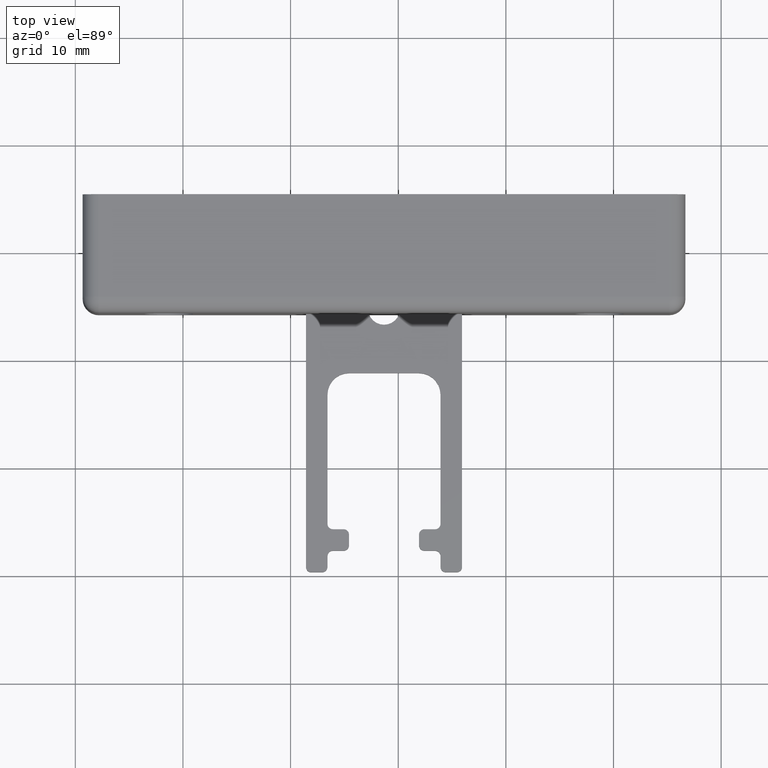
[diagram: clean part render]
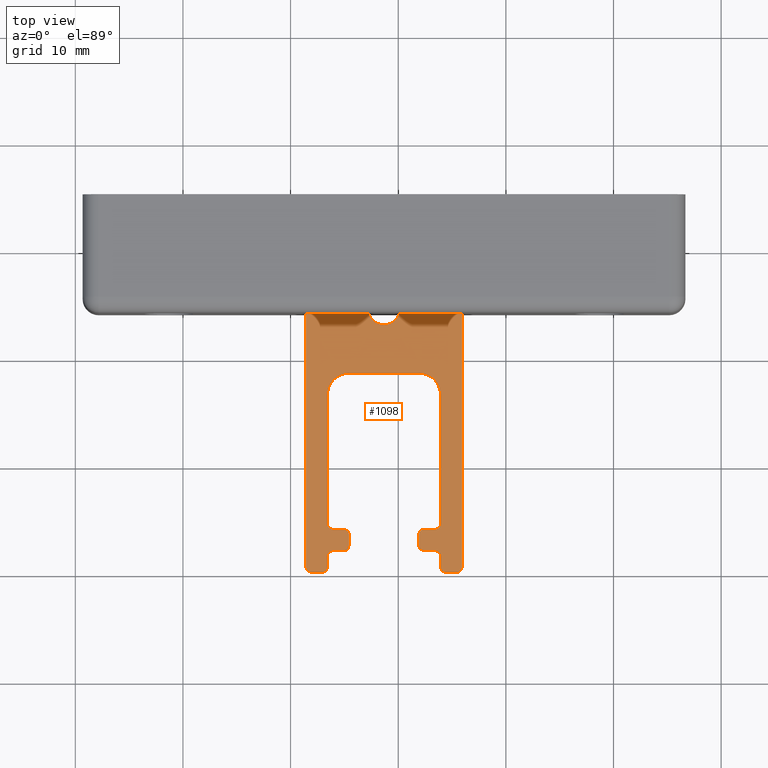
[diagram: same view with one face highlighted and labeled with its STEP entity id]
A machine part, top view. The second image highlights one B-rep face of the part: STEP entity #1098.
In plain terms, the highlighted planar face has unit normal (0, 0, 1).
Its self-contained STEP definition (entity closure, byte-faithful):
#57=PLANE('',#1216);
#104=LINE('',#1724,#206);
#108=LINE('',#1736,#210);
#112=LINE('',#1748,#214);
#116=LINE('',#1760,#218);
#120=LINE('',#1772,#222);
#126=LINE('',#1793,#228);
#130=LINE('',#1805,#232);
#134=LINE('',#1817,#236);
#138=LINE('',#1829,#240);
#142=LINE('',#1841,#244);
#146=LINE('',#1852,#248);
#148=LINE('',#1856,#250);
#151=LINE('',#1862,#253);
#158=LINE('',#1872,#260);
#159=LINE('',#1874,#261);
#160=LINE('',#1876,#262);
#161=LINE('',#1877,#263);
#206=VECTOR('',#1396,12.);
#210=VECTOR('',#1408,1.00000000000001);
#214=VECTOR('',#1420,0.999999999999996);
#218=VECTOR('',#1432,1.00000000000001);
#222=VECTOR('',#1444,1.00000000000002);
#228=VECTOR('',#1464,1.00000000000002);
#232=VECTOR('',#1476,0.999999999999543);
#236=VECTOR('',#1488,0.999999999999996);
#240=VECTOR('',#1500,0.999999999999091);
#244=VECTOR('',#1512,12.);
#248=VECTOR('',#1524,6.50000000000001);
#250=VECTOR('',#1528,5.83578643762693);
#253=VECTOR('',#1533,23.5);
#260=VECTOR('',#1544,1.);
#261=VECTOR('',#1547,23.5);
#262=VECTOR('',#1550,5.8357864376269);
#263=VECTOR('',#1551,1.);
#348=FACE_OUTER_BOUND('',#412,.T.);
#412=EDGE_LOOP('',(#997,#998,#999,#1000,#1001,#1002,#1003,#1004,#1005,#1006,
#1007,#1008,#1009,#1010,#1011,#1012,#1013,#1014,#1015,#1016,#1017,#1018,
#1019,#1020,#1021,#1022,#1023,#1024,#1025,#1026,#1027,#1028));
#439=CIRCLE('',#1156,1.5);
#441=CIRCLE('',#1159,0.5);
#443=CIRCLE('',#1162,0.5);
#445=CIRCLE('',#1165,2.);
#447=CIRCLE('',#1169,0.5);
#449=CIRCLE('',#1173,0.5);
#451=CIRCLE('',#1177,0.5);
#453=CIRCLE('',#1181,0.5);
#455=CIRCLE('',#1185,0.5);
#457=CIRCLE('',#1188,0.5);
#459=CIRCLE('',#1192,0.5);
#461=CIRCLE('',#1196,0.5);
#463=CIRCLE('',#1200,0.5);
#465=CIRCLE('',#1204,0.5);
#467=CIRCLE('',#1208,2.);
#505=VERTEX_POINT('',#1687);
#506=VERTEX_POINT('',#1688);
#509=VERTEX_POINT('',#1696);
#510=VERTEX_POINT('',#1697);
#513=VERTEX_POINT('',#1705);
#514=VERTEX_POINT('',#1706);
#517=VERTEX_POINT('',#1714);
#518=VERTEX_POINT('',#1715);
#521=VERTEX_POINT('',#1723);
#523=VERTEX_POINT('',#1729);
#525=VERTEX_POINT('',#1735);
#527=VERTEX_POINT('',#1741);
#529=VERTEX_POINT('',#1747);
#531=VERTEX_POINT('',#1753);
#533=VERTEX_POINT('',#1759);
#535=VERTEX_POINT('',#1765);
#537=VERTEX_POINT('',#1771);
#539=VERTEX_POINT('',#1777);
#541=VERTEX_POINT('',#1783);
#542=VERTEX_POINT('',#1784);
#545=VERTEX_POINT('',#1792);
#547=VERTEX_POINT('',#1798);
#549=VERTEX_POINT('',#1804);
#551=VERTEX_POINT('',#1810);
#553=VERTEX_POINT('',#1816);
#555=VERTEX_POINT('',#1822);
#557=VERTEX_POINT('',#1828);
#559=VERTEX_POINT('',#1834);
#561=VERTEX_POINT('',#1840);
#563=VERTEX_POINT('',#1846);
#565=VERTEX_POINT('',#1855);
#567=VERTEX_POINT('',#1861);
#629=EDGE_CURVE('',#505,#506,#439,.T.);
#633=EDGE_CURVE('',#509,#510,#441,.T.);
#637=EDGE_CURVE('',#513,#514,#443,.T.);
#641=EDGE_CURVE('',#517,#518,#445,.T.);
#645=EDGE_CURVE('',#518,#521,#104,.T.);
#648=EDGE_CURVE('',#521,#523,#447,.T.);
#651=EDGE_CURVE('',#523,#525,#108,.T.);
#654=EDGE_CURVE('',#525,#527,#449,.T.);
#657=EDGE_CURVE('',#527,#529,#112,.T.);
#660=EDGE_CURVE('',#529,#531,#451,.T.);
#663=EDGE_CURVE('',#531,#533,#116,.T.);
#666=EDGE_CURVE('',#533,#535,#453,.T.);
#669=EDGE_CURVE('',#535,#537,#120,.T.);
#672=EDGE_CURVE('',#537,#539,#455,.T.);
#675=EDGE_CURVE('',#541,#542,#457,.T.);
#679=EDGE_CURVE('',#542,#545,#126,.T.);
#682=EDGE_CURVE('',#545,#547,#459,.T.);
#685=EDGE_CURVE('',#547,#549,#130,.T.);
#688=EDGE_CURVE('',#549,#551,#461,.T.);
#691=EDGE_CURVE('',#551,#553,#134,.T.);
#694=EDGE_CURVE('',#553,#555,#463,.T.);
#697=EDGE_CURVE('',#555,#557,#138,.T.);
#700=EDGE_CURVE('',#557,#559,#465,.T.);
#703=EDGE_CURVE('',#559,#561,#142,.T.);
#706=EDGE_CURVE('',#561,#563,#467,.T.);
#709=EDGE_CURVE('',#563,#517,#146,.T.);
#711=EDGE_CURVE('',#505,#565,#148,.T.);
#714=EDGE_CURVE('',#567,#509,#151,.T.);
#721=EDGE_CURVE('',#513,#539,#158,.T.);
#722=EDGE_CURVE('',#565,#514,#159,.T.);
#723=EDGE_CURVE('',#567,#506,#160,.T.);
#724=EDGE_CURVE('',#541,#510,#161,.T.);
#997=ORIENTED_EDGE('',*,*,#629,.T.);
#998=ORIENTED_EDGE('',*,*,#723,.F.);
#999=ORIENTED_EDGE('',*,*,#714,.T.);
#1000=ORIENTED_EDGE('',*,*,#633,.T.);
#1001=ORIENTED_EDGE('',*,*,#724,.F.);
#1002=ORIENTED_EDGE('',*,*,#675,.T.);
#1003=ORIENTED_EDGE('',*,*,#679,.T.);
#1004=ORIENTED_EDGE('',*,*,#682,.T.);
#1005=ORIENTED_EDGE('',*,*,#685,.T.);
#1006=ORIENTED_EDGE('',*,*,#688,.T.);
#1007=ORIENTED_EDGE('',*,*,#691,.T.);
#1008=ORIENTED_EDGE('',*,*,#694,.T.);
#1009=ORIENTED_EDGE('',*,*,#697,.T.);
#1010=ORIENTED_EDGE('',*,*,#700,.T.);
#1011=ORIENTED_EDGE('',*,*,#703,.T.);
#1012=ORIENTED_EDGE('',*,*,#706,.T.);
#1013=ORIENTED_EDGE('',*,*,#709,.T.);
#1014=ORIENTED_EDGE('',*,*,#641,.T.);
#1015=ORIENTED_EDGE('',*,*,#645,.T.);
#1016=ORIENTED_EDGE('',*,*,#648,.T.);
#1017=ORIENTED_EDGE('',*,*,#651,.T.);
#1018=ORIENTED_EDGE('',*,*,#654,.T.);
#1019=ORIENTED_EDGE('',*,*,#657,.T.);
#1020=ORIENTED_EDGE('',*,*,#660,.T.);
#1021=ORIENTED_EDGE('',*,*,#663,.T.);
#1022=ORIENTED_EDGE('',*,*,#666,.T.);
#1023=ORIENTED_EDGE('',*,*,#669,.T.);
#1024=ORIENTED_EDGE('',*,*,#672,.T.);
#1025=ORIENTED_EDGE('',*,*,#721,.F.);
#1026=ORIENTED_EDGE('',*,*,#637,.T.);
#1027=ORIENTED_EDGE('',*,*,#722,.F.);
#1028=ORIENTED_EDGE('',*,*,#711,.F.);
#1098=ADVANCED_FACE('',(#348),#57,.T.);
#1156=AXIS2_PLACEMENT_3D('',#1689,#1364,#1365);
#1159=AXIS2_PLACEMENT_3D('',#1698,#1372,#1373);
#1162=AXIS2_PLACEMENT_3D('',#1707,#1380,#1381);
#1165=AXIS2_PLACEMENT_3D('',#1716,#1388,#1389);
#1169=AXIS2_PLACEMENT_3D('',#1730,#1401,#1402);
#1173=AXIS2_PLACEMENT_3D('',#1742,#1413,#1414);
#1177=AXIS2_PLACEMENT_3D('',#1754,#1425,#1426);
#1181=AXIS2_PLACEMENT_3D('',#1766,#1437,#1438);
#1185=AXIS2_PLACEMENT_3D('',#1778,#1449,#1450);
#1188=AXIS2_PLACEMENT_3D('',#1785,#1456,#1457);
#1192=AXIS2_PLACEMENT_3D('',#1799,#1469,#1470);
#1196=AXIS2_PLACEMENT_3D('',#1811,#1481,#1482);
#1200=AXIS2_PLACEMENT_3D('',#1823,#1493,#1494);
#1204=AXIS2_PLACEMENT_3D('',#1835,#1505,#1506);
#1208=AXIS2_PLACEMENT_3D('',#1847,#1517,#1518);
#1216=AXIS2_PLACEMENT_3D('',#1875,#1548,#1549);
#1364=DIRECTION('center_axis',(0.,-1.,0.));
#1365=DIRECTION('ref_axis',(0.942809041582171,1.7445471763155E-16,0.33333333333303));
#1372=DIRECTION('center_axis',(0.,1.,0.));
#1373=DIRECTION('ref_axis',(0.,0.,-1.));
#1380=DIRECTION('center_axis',(0.,1.,0.));
#1381=DIRECTION('ref_axis',(-1.,-1.85037170770859E-16,-1.77635683940024E-14));
#1388=DIRECTION('center_axis',(0.,-1.,0.));
#1389=DIRECTION('ref_axis',(0.,0.,-1.));
#1396=DIRECTION('',(0.,0.,1.));
#1401=DIRECTION('center_axis',(0.,-1.,0.));
#1402=DIRECTION('ref_axis',(1.,1.85037170770859E-16,0.));
#1408=DIRECTION('',(-1.,0.,8.88178419700121E-15));
#1413=DIRECTION('center_axis',(0.,1.,0.));
#1414=DIRECTION('ref_axis',(1.,1.85037170770859E-16,0.));
#1420=DIRECTION('',(0.,0.,1.));
#1425=DIRECTION('center_axis',(0.,1.,0.));
#1426=DIRECTION('ref_axis',(2.66453525910039E-14,4.93038065763134E-30,-1.));
#1432=DIRECTION('',(1.,0.,0.));
#1437=DIRECTION('center_axis',(0.,-1.,0.));
#1438=DIRECTION('ref_axis',(-1.77635683940026E-14,-3.28692043842089E-30,
-1.));
#1444=DIRECTION('',(0.,0.,1.));
#1449=DIRECTION('center_axis',(0.,1.,0.));
#1450=DIRECTION('ref_axis',(-3.55271367880048E-14,-6.57384087684173E-30,
-1.));
#1456=DIRECTION('center_axis',(0.,1.,0.));
#1457=DIRECTION('ref_axis',(-1.,-1.85037170770859E-16,-1.77635683940026E-14));
#1464=DIRECTION('',(0.,0.,-1.));
#1469=DIRECTION('center_axis',(0.,-1.,0.));
#1470=DIRECTION('ref_axis',(-1.,-1.85037170770859E-16,-1.77635683940026E-14));
#1476=DIRECTION('',(1.,0.,0.));
#1481=DIRECTION('center_axis',(0.,1.,0.));
#1482=DIRECTION('ref_axis',(-1.,-1.85037170770859E-16,0.));
#1488=DIRECTION('',(-4.61852778244067E-13,0.,-1.));
#1493=DIRECTION('center_axis',(0.,1.,0.));
#1494=DIRECTION('ref_axis',(0.,0.,1.));
#1500=DIRECTION('',(-1.,0.,0.));
#1505=DIRECTION('center_axis',(0.,-1.,0.));
#1506=DIRECTION('ref_axis',(0.,0.,1.));
#1512=DIRECTION('',(0.,0.,-1.));
#1517=DIRECTION('center_axis',(0.,-1.,0.));
#1518=DIRECTION('ref_axis',(-1.,-1.85037170770859E-16,0.));
#1524=DIRECTION('',(1.,0.,-2.04964250700029E-15));
#1528=DIRECTION('',(1.,0.,0.));
#1533=DIRECTION('',(0.,0.,1.));
#1544=DIRECTION('',(-1.,0.,0.));
#1547=DIRECTION('',(0.,0.,1.));
#1548=DIRECTION('center_axis',(0.,1.,0.));
#1549=DIRECTION('ref_axis',(-1.,0.,0.));
#1550=DIRECTION('',(1.,0.,0.));
#1551=DIRECTION('',(-1.,0.,0.));
#1687=CARTESIAN_POINT('',(29.4142135623729,8.5,0.));
#1688=CARTESIAN_POINT('',(26.5857864376268,8.5,0.));
#1689=CARTESIAN_POINT('Origin',(27.9999999999998,8.5,-0.50000000000002));
#1696=CARTESIAN_POINT('',(20.7499999999999,8.5,23.5));
#1697=CARTESIAN_POINT('',(21.2499999999999,8.5,24.));
#1698=CARTESIAN_POINT('Origin',(21.2499999999999,8.5,23.5));
#1705=CARTESIAN_POINT('',(34.7499999999999,8.5,24.));
#1706=CARTESIAN_POINT('',(35.2499999999999,8.5,23.5));
#1707=CARTESIAN_POINT('Origin',(34.7499999999999,8.5,23.5));
#1714=CARTESIAN_POINT('',(31.2499999999999,8.5,5.5));
#1715=CARTESIAN_POINT('',(33.2499999999999,8.5,7.5));
#1716=CARTESIAN_POINT('Origin',(31.2499999999999,8.5,7.5));
#1723=CARTESIAN_POINT('',(33.2499999999999,8.5,19.5));
#1724=CARTESIAN_POINT('',(33.2499999999999,8.5,3.75));
#1729=CARTESIAN_POINT('',(32.7499999999999,8.5,20.));
#1730=CARTESIAN_POINT('Origin',(32.7499999999999,8.5,19.5));
#1735=CARTESIAN_POINT('',(31.7499999999998,8.5,20.));
#1736=CARTESIAN_POINT('',(33.9999999999999,8.5,20.));
#1741=CARTESIAN_POINT('',(31.2499999999999,8.5,20.5));
#1742=CARTESIAN_POINT('Origin',(31.7499999999998,8.5,20.5));
#1747=CARTESIAN_POINT('',(31.2499999999999,8.5,21.5));
#1748=CARTESIAN_POINT('',(31.2499999999999,8.5,10.25));
#1753=CARTESIAN_POINT('',(31.7499999999998,8.5,22.));
#1754=CARTESIAN_POINT('Origin',(31.7499999999999,8.5,21.5));
#1759=CARTESIAN_POINT('',(32.7499999999999,8.5,22.));
#1760=CARTESIAN_POINT('',(33.4999999999999,8.5,22.));
#1765=CARTESIAN_POINT('',(33.2499999999999,8.5,22.5));
#1766=CARTESIAN_POINT('Origin',(32.7499999999999,8.5,22.5));
#1771=CARTESIAN_POINT('',(33.2499999999999,8.5,23.5));
#1772=CARTESIAN_POINT('',(33.2499999999999,8.5,11.25));
#1777=CARTESIAN_POINT('',(33.7499999999999,8.5,24.));
#1778=CARTESIAN_POINT('Origin',(33.7499999999999,8.5,23.5));
#1783=CARTESIAN_POINT('',(22.2499999999999,8.5,24.));
#1784=CARTESIAN_POINT('',(22.7499999999999,8.5,23.5));
#1785=CARTESIAN_POINT('Origin',(22.2499999999999,8.5,23.5));
#1792=CARTESIAN_POINT('',(22.7499999999999,8.5,22.5));
#1793=CARTESIAN_POINT('',(22.7499999999999,8.5,11.75));
#1798=CARTESIAN_POINT('',(23.2499999999999,8.5,22.));
#1799=CARTESIAN_POINT('Origin',(23.2499999999999,8.5,22.5));
#1804=CARTESIAN_POINT('',(24.2499999999994,8.5,22.));
#1805=CARTESIAN_POINT('',(29.2499999999999,8.5,22.));
#1810=CARTESIAN_POINT('',(24.7499999999994,8.5,21.5));
#1811=CARTESIAN_POINT('Origin',(24.2499999999994,8.5,21.5));
#1816=CARTESIAN_POINT('',(24.7499999999989,8.5,20.5));
#1817=CARTESIAN_POINT('',(24.7499999999944,8.5,10.7500000000024));
#1822=CARTESIAN_POINT('',(24.2499999999989,8.5,20.));
#1823=CARTESIAN_POINT('Origin',(24.2499999999989,8.5,20.5));
#1828=CARTESIAN_POINT('',(23.2499999999999,8.5,20.));
#1829=CARTESIAN_POINT('',(29.7499999999994,8.5,20.));
#1834=CARTESIAN_POINT('',(22.7499999999999,8.5,19.5));
#1835=CARTESIAN_POINT('Origin',(23.2499999999999,8.5,19.5));
#1840=CARTESIAN_POINT('',(22.7499999999999,8.5,7.5));
#1841=CARTESIAN_POINT('',(22.7499999999999,8.5,9.75000000000001));
#1846=CARTESIAN_POINT('',(24.7499999999998,8.5,5.50000000000002));
#1847=CARTESIAN_POINT('Origin',(24.7499999999998,8.5,7.5));
#1852=CARTESIAN_POINT('',(29.9999999999999,8.5,5.50000000000001));
#1855=CARTESIAN_POINT('',(35.2499999999999,8.5,0.));
#1856=CARTESIAN_POINT('',(20.7499999999999,8.5,0.));
#1861=CARTESIAN_POINT('',(20.7499999999999,8.5,0.));
#1862=CARTESIAN_POINT('',(20.7499999999999,8.5,0.));
#1872=CARTESIAN_POINT('',(20.7499999999999,8.5,24.));
#1874=CARTESIAN_POINT('',(35.2499999999999,8.5,0.));
#1875=CARTESIAN_POINT('Origin',(35.2499999999999,8.5,0.));
#1876=CARTESIAN_POINT('',(20.7499999999999,8.5,0.));
#1877=CARTESIAN_POINT('',(20.7499999999999,8.5,24.));